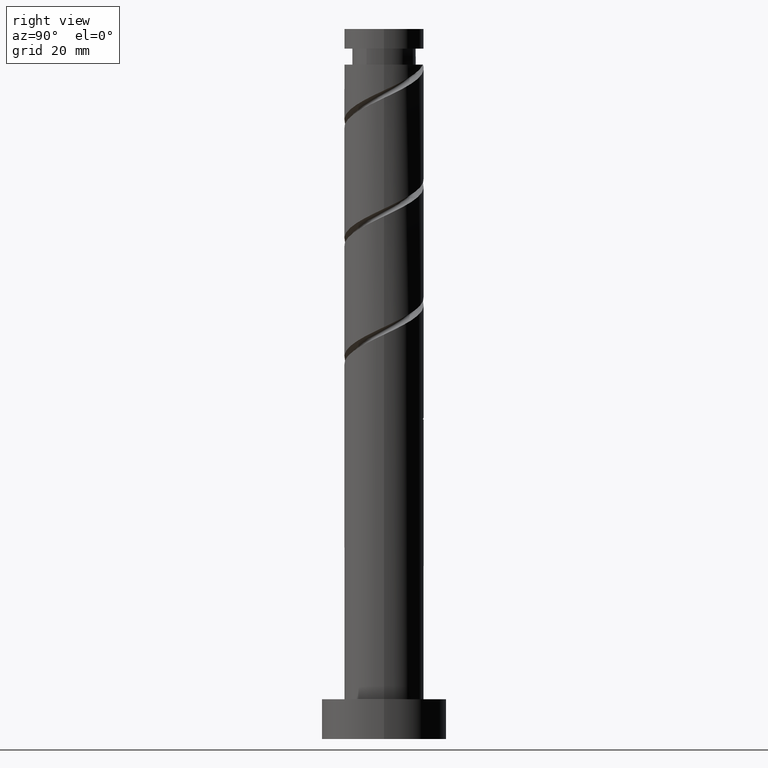
[diagram: clean part render]
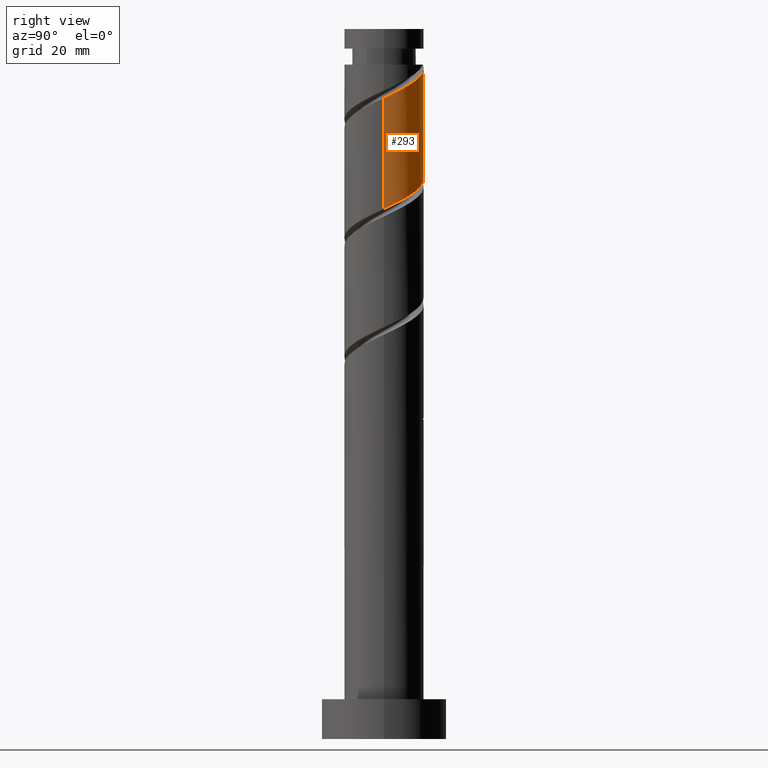
[diagram: same view with one face highlighted and labeled with its STEP entity id]
A machine part, right view. The second image highlights one B-rep face of the part: STEP entity #293.
In plain terms, the highlighted cylindrical surface (partial cylindrical patch) has radius 7 mm, axis along (-0, -0, -1).
Its self-contained STEP definition (entity closure, byte-faithful):
#20 = CARTESIAN_POINT ( 'NONE',  ( 6.828779140186457042, 1.896568314209444273, 94.26521562170751167 ) ) ;
#38 = AXIS2_PLACEMENT_3D ( 'NONE', #952, #308, #961 ) ;
#60 = ORIENTED_EDGE ( 'NONE', *, *, #1425, .F. ) ;
#167 = CARTESIAN_POINT ( 'NONE',  ( 6.639373260301504764, 2.479499672575589564, 114.0568822883741973 ) ) ;
#169 = AXIS2_PLACEMENT_3D ( 'NONE', #451, #1326, #227 ) ;
#189 = ORIENTED_EDGE ( 'NONE', *, *, #618, .F. ) ;
#204 = VERTEX_POINT ( 'NONE', #562 ) ;
#214 = VERTEX_POINT ( 'NONE', #815 ) ;
#227 = DIRECTION ( 'NONE',  ( -1.000000000000000000, 0.000000000000000000, 0.000000000000000000 ) ) ;
#231 = CARTESIAN_POINT ( 'NONE',  ( 3.444661581381032178, 6.093792463627027978, 96.86938228837419729 ) ) ;
#258 = CARTESIAN_POINT ( 'NONE',  ( -2.905260386594004096, 6.368631099858720113, 99.99438228837416887 ) ) ;
#290 =( BOUNDED_CURVE ( )  B_SPLINE_CURVE ( 2, ( #1186, #570, #1068, #1194, #577, #1547, #447, #621, #258, #1223, #482, #1454, #865, #1127, #231, #1101, #1463, #874, #1341, #20, #493, #999, #1217 ),
 .UNSPECIFIED., .F., .T. ) 
 B_SPLINE_CURVE_WITH_KNOTS ( ( 3, 2, 2, 2, 2, 2, 2, 2, 2, 2, 2, 3 ),
 ( 0.4295322023138552492, 0.4375000000000000000, 0.4500000000000000111, 0.4625000000000000222, 0.4749999999999999778, 0.4874999999999999889, 0.5000000000000000000, 0.5124999999999999556, 0.5250000000000000222, 0.5374999999999999778, 0.5500000000000000444, 0.5545322023138552492 ),
 .UNSPECIFIED. ) 
 CURVE ( )  GEOMETRIC_REPRESENTATION_ITEM ( )  RATIONAL_B_SPLINE_CURVE ( ( 0.9039174447099329601, 0.9019565955404622581, 0.9090909090909106149, 0.8978984914501266790, 0.9090909090909106149, 0.8978984914501266790, 0.9090909090909106149, 0.8978984914501266790, 0.9090909090909106149, 0.8978984914501266790, 0.9090909090909106149, 0.8978984914501266790, 0.9090909090909106149, 0.8978984914501266790, 0.9090909090909106149, 0.8978984914501266790, 0.9090909090909106149, 0.8978984914501266790, 0.9090909090909106149, 0.8978984914501266790, 0.9090909090909106149, 0.9050328050005749247, 0.9039174447099327381 ) ) 
 REPRESENTATION_ITEM ( '' )  );
#293 = ADVANCED_FACE ( 'NONE', ( #846 ), #1422, .T. ) ;
#308 = DIRECTION ( 'NONE',  ( -0.000000000000000000, -0.000000000000000000, -1.000000000000000000 ) ) ;
#331 = ORIENTED_EDGE ( 'NONE', *, *, #1055, .T. ) ;
#378 = VECTOR ( 'NONE', #813, 1000.000000000000000 ) ;
#429 = CARTESIAN_POINT ( 'NONE',  ( 7.000000000000014211, 1.829158539551100470E-15, 112.8712465135705969 ) ) ;
#447 = CARTESIAN_POINT ( 'NONE',  ( -4.731082062965562329, 5.159153274858727656, 101.0360489550408261 ) ) ;
#451 = CARTESIAN_POINT ( 'NONE',  ( 0.000000000000000000, 0.000000000000000000, 125.0000000000000000 ) ) ;
#455 = CARTESIAN_POINT ( 'NONE',  ( 0.7950515814432523864, 6.954702939942492002, 117.7027156217075259 ) ) ;
#456 = ORIENTED_EDGE ( 'NONE', *, *, #605, .T. ) ;
#482 = CARTESIAN_POINT ( 'NONE',  ( -0.7950515814432478345, 6.954702939942481343, 98.95271562170751167 ) ) ;
#493 = CARTESIAN_POINT ( 'NONE',  ( 6.954702939942483120, 0.7950515814432469464, 93.74438228837418308 ) ) ;
#511 =( BOUNDED_CURVE ( )  B_SPLINE_CURVE ( 2, ( #1393, #1054, #761, #167, #1429, #966, #1177, #837, #936, #702, #455, #1568, #828 ),
 .UNSPECIFIED., .F., .T. ) 
 B_SPLINE_CURVE_WITH_KNOTS ( ( 3, 2, 2, 2, 2, 2, 3 ),
 ( 0.6795322023138552492, 0.6875000000000000000, 0.6999999999999999556, 0.7125000000000000222, 0.7249999999999999778, 0.7375000000000000444, 0.7500000000000000000 ),
 .UNSPECIFIED. ) 
 CURVE ( )  GEOMETRIC_REPRESENTATION_ITEM ( )  RATIONAL_B_SPLINE_CURVE ( ( 0.9039174447099388443, 0.9019565955404682533, 0.9090909090909166101, 0.8978984914501326742, 0.9090909090909166101, 0.8978984914501326742, 0.9090909090909166101, 0.8978984914501326742, 0.9090909090909166101, 0.8978984914501326742, 0.9090909090909166101, 0.8978984914501326742, 0.9090909090909166101 ) ) 
 REPRESENTATION_ITEM ( '' )  );
#535 = EDGE_CURVE ( 'NONE', #919, #1305, #511, .T. ) ;
#562 = CARTESIAN_POINT ( 'NONE',  ( -7.000000000000003553, 4.617875657227398467E-15, 103.7841847298444407 ) ) ;
#570 = CARTESIAN_POINT ( 'NONE',  ( -7.000000000000000888, 0.7035264706814560176, 103.4498801544366131 ) ) ;
#577 = CARTESIAN_POINT ( 'NONE',  ( -6.093792463627027978, 3.444661581381031290, 102.0777156217075259 ) ) ;
#605 = EDGE_CURVE ( 'NONE', #214, #1305, #1485, .T. ) ;
#618 = EDGE_CURVE ( 'NONE', #204, #1342, #290, .T. ) ;
#621 = CARTESIAN_POINT ( 'NONE',  ( -3.913952458978563698, 5.908483059530980519, 100.5152156217074975 ) ) ;
#702 = CARTESIAN_POINT ( 'NONE',  ( 1.896568314209450490, 6.828779140186465924, 117.1818822883741689 ) ) ;
#761 = CARTESIAN_POINT ( 'NONE',  ( 6.860000000000011866, 1.392982411949268418, 113.5360489550408545 ) ) ;
#780 = LINE ( 'NONE', #1279, #907 ) ;
#813 = DIRECTION ( 'NONE',  ( -0.000000000000000000, -0.000000000000000000, -1.000000000000000000 ) ) ;
#815 = CARTESIAN_POINT ( 'NONE',  ( -6.999999999999999112, 0.000000000000000000, 118.7443822883741831 ) ) ;
#819 = CARTESIAN_POINT ( 'NONE',  ( 7.000000000000000888, 8.572527594031474176E-16, 125.0000000000000000 ) ) ;
#828 = CARTESIAN_POINT ( 'NONE',  ( -1.392982411949267973, 6.860000000000014531, 118.7443822883741831 ) ) ;
#837 = CARTESIAN_POINT ( 'NONE',  ( 3.913952458978571247, 5.908483059530990289, 116.1402156217075117 ) ) ;
#846 = FACE_OUTER_BOUND ( 'NONE', #1062, .T. ) ;
#865 = CARTESIAN_POINT ( 'NONE',  ( 1.392982411949269750, 6.860000000000001208, 97.91104895504082606 ) ) ;
#874 = CARTESIAN_POINT ( 'NONE',  ( 5.908483059530981407, 3.913952458978562365, 95.30688228837422571 ) ) ;
#907 = VECTOR ( 'NONE', #918, 1000.000000000000000 ) ;
#918 = DIRECTION ( 'NONE',  ( -0.000000000000000000, -0.000000000000000000, -1.000000000000000000 ) ) ;
#919 = VERTEX_POINT ( 'NONE', #429 ) ;
#929 = LINE ( 'NONE', #819, #378 ) ;
#936 = CARTESIAN_POINT ( 'NONE',  ( 2.905260386594012090, 6.368631099858727218, 116.6610489550408261 ) ) ;
#952 = CARTESIAN_POINT ( 'NONE',  ( 0.000000000000000000, 0.000000000000000000, 118.7443822883741831 ) ) ;
#961 = DIRECTION ( 'NONE',  ( -1.000000000000000000, 0.000000000000000000, 0.000000000000000000 ) ) ;
#966 = CARTESIAN_POINT ( 'NONE',  ( 5.548211666952570731, 4.409823490186481010, 115.0985489550408261 ) ) ;
#999 = CARTESIAN_POINT ( 'NONE',  ( 7.000000000000005329, 0.3988161621250252420, 93.55702915238506989 ) ) ;
#1054 = CARTESIAN_POINT ( 'NONE',  ( 7.000000000000009770, 0.7035264706814510216, 113.2055510889784102 ) ) ;
#1055 = EDGE_CURVE ( 'NONE', #919, #1342, #929, .T. ) ;
#1062 = EDGE_LOOP ( 'NONE', ( #1471, #331, #189, #60, #456 ) ) ;
#1068 = CARTESIAN_POINT ( 'NONE',  ( -6.860000000000001208, 1.392982411949268418, 103.1193822883741689 ) ) ;
#1101 = CARTESIAN_POINT ( 'NONE',  ( 4.409823490186476569, 5.548211666952560961, 96.34854895504084027 ) ) ;
#1127 = CARTESIAN_POINT ( 'NONE',  ( 2.479499672575589120, 6.639373260301493218, 97.39021562170752588 ) ) ;
#1173 = CARTESIAN_POINT ( 'NONE',  ( 7.000000000000003553, -8.935889258790682024E-15, 93.36751806317779767 ) ) ;
#1177 = CARTESIAN_POINT ( 'NONE',  ( 4.731082062965572099, 5.159153274858734761, 115.6193822883741973 ) ) ;
#1186 = CARTESIAN_POINT ( 'NONE',  ( -7.000000000000003553, 4.617875657227398467E-15, 103.7841847298444407 ) ) ;
#1194 = CARTESIAN_POINT ( 'NONE',  ( -6.639373260301494106, 2.479499672575587788, 102.5985489550408545 ) ) ;
#1217 = CARTESIAN_POINT ( 'NONE',  ( 7.000000000000003553, -8.935889258790682024E-15, 93.36751806317779767 ) ) ;
#1223 = CARTESIAN_POINT ( 'NONE',  ( -1.896568314209444717, 6.828779140186457042, 99.47354895504082606 ) ) ;
#1255 = CARTESIAN_POINT ( 'NONE',  ( -1.392982411949267973, 6.860000000000014531, 118.7443822883741831 ) ) ;
#1279 = CARTESIAN_POINT ( 'NONE',  ( -7.000000000000000888, 0.000000000000000000, 125.0000000000000000 ) ) ;
#1305 = VERTEX_POINT ( 'NONE', #1255 ) ;
#1326 = DIRECTION ( 'NONE',  ( -0.000000000000000000, -0.000000000000000000, -1.000000000000000000 ) ) ;
#1341 = CARTESIAN_POINT ( 'NONE',  ( 6.368631099858720113, 2.905260386594003208, 94.78604895504085448 ) ) ;
#1342 = VERTEX_POINT ( 'NONE', #1173 ) ;
#1393 = CARTESIAN_POINT ( 'NONE',  ( 7.000000000000014211, 1.829158539551100470E-15, 112.8712465135705969 ) ) ;
#1422 = CYLINDRICAL_SURFACE ( 'NONE', #169, 7.000000000000000888 ) ;
#1425 = EDGE_CURVE ( 'NONE', #214, #204, #780, .T. ) ;
#1429 = CARTESIAN_POINT ( 'NONE',  ( 6.093792463627037748, 3.444661581381035731, 114.5777156217075259 ) ) ;
#1454 = CARTESIAN_POINT ( 'NONE',  ( 0.3064651513229493252, 7.080626739698509198, 98.43188228837418308 ) ) ;
#1463 = CARTESIAN_POINT ( 'NONE',  ( 5.159153274858729432, 4.731082062965559665, 95.82771562170749746 ) ) ;
#1471 = ORIENTED_EDGE ( 'NONE', *, *, #535, .F. ) ;
#1485 = CIRCLE ( 'NONE', #38, 6.999999999999999112 ) ;
#1547 = CARTESIAN_POINT ( 'NONE',  ( -5.548211666952560961, 4.409823490186474793, 101.5568822883741547 ) ) ;
#1568 = CARTESIAN_POINT ( 'NONE',  ( -0.3064651513229468272, 7.080626739698518968, 118.2235489550408829 ) ) ;